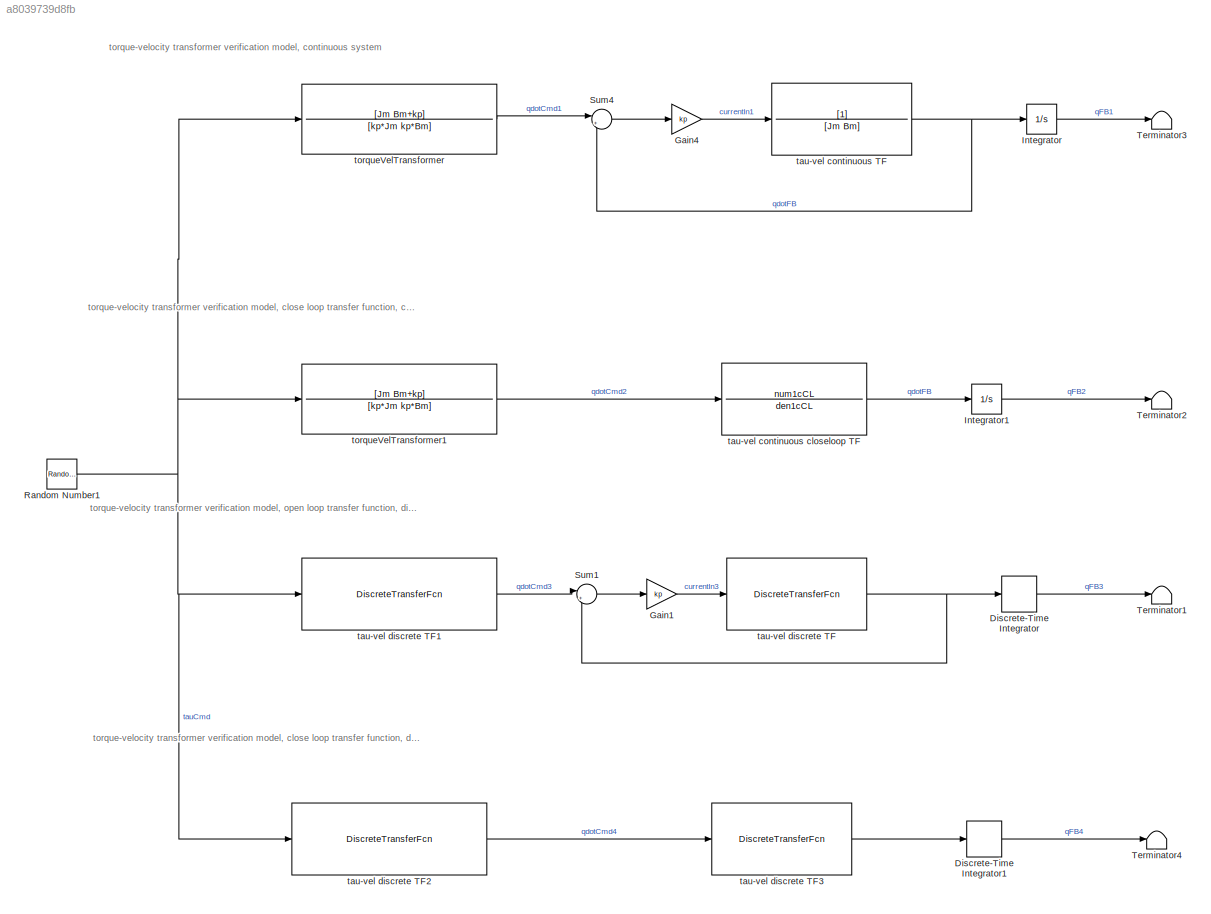
MODEL slx_a8039739d8fb
KIND model
CONFIG AbsTol = auto
CONFIG EnableMultiTasking = off
CONFIG FixedStep = dt5k
CONFIG InitFcn = velInit1;
CONFIG MaxStep = auto
CONFIG MinStep = auto
CONFIG RelTol = 1e-3
CONFIG SampleTimeConstraint = Unconstrained
CONFIG SolverName = ode5
CONFIG StartTime = 0.0
CONFIG StopTime = runT
BLOCK [DiscreteIntegrator] Discrete-Time Integrator
  ICPrevOutput = DiscIntNeverNeededParam
  ICPrevScaledInput = DiscIntNeverNeededParam
  InitialCondition = q0
  InitialConditionSetting = Auto
  Ports = [1, 1]
  SampleTime = dt5k
BLOCK [DiscreteIntegrator] Discrete-Time Integrator1
  ICPrevOutput = DiscIntNeverNeededParam
  ICPrevScaledInput = DiscIntNeverNeededParam
  InitialCondition = q0
  InitialConditionSetting = Auto
  Ports = [1, 1]
  SampleTime = dt5k
BLOCK [Gain] Gain1
  Gain = kp
BLOCK [Gain] Gain4
  Gain = kp
BLOCK [Integrator] Integrator
  Ports = [1, 1]
BLOCK [Integrator] Integrator1
  InitialCondition = q0
  Ports = [1, 1]
BLOCK [RandomNumber] Random Number1
  SampleTime = 0.2
  Seed = seedIndex
  Variance = 10
BLOCK [Sum] Sum1
  Inputs = |+-
  Ports = [2, 1]
BLOCK [Sum] Sum4
  Inputs = |+-
  Ports = [2, 1]
BLOCK [Terminator] Terminator1
BLOCK [Terminator] Terminator2
BLOCK [Terminator] Terminator3
BLOCK [Terminator] Terminator4
BLOCK [TransferFcn] tau-vel continuous TF
  Denominator = [Jm Bm]
BLOCK [TransferFcn] tau-vel continuous closeloop TF
  Denominator = den1cCL
  Numerator = num1cCL
BLOCK [DiscreteTransferFcn] tau-vel discrete TF
  Denominator = den1d
  InputPortMap = u0
  Numerator = num1d
  Ports = [1, 1]
  SampleTime = dt5k
BLOCK [DiscreteTransferFcn] tau-vel discrete TF1
  Denominator = denEd
  InputPortMap = u0
  Numerator = numEd
  Ports = [1, 1]
  SampleTime = dt1k
BLOCK [DiscreteTransferFcn] tau-vel discrete TF2
  Denominator = denEd
  InputPortMap = u0
  Numerator = numEd
  Ports = [1, 1]
  SampleTime = dt1k
BLOCK [DiscreteTransferFcn] tau-vel discrete TF3
  Denominator = den2d
  InputPortMap = u0
  Numerator = num2d
  Ports = [1, 1]
  SampleTime = dt5k
BLOCK [TransferFcn] torqueVelTransformer
  Denominator = [kp*Jm kp*Bm]
  Numerator = [Jm Bm+kp]
BLOCK [TransferFcn] torqueVelTransformer1
  Denominator = [kp*Jm kp*Bm]
  Numerator = [Jm Bm+kp]
ANNOTATION (root): torque-velocity transformer verification model, close loop transfer function, continuous system
ANNOTATION (root): torque-velocity transformer verification model, close loop transfer function, discrete system
ANNOTATION (root): torque-velocity transformer verification model, continuous system
ANNOTATION (root): torque-velocity transformer verification model, open loop transfer function, discrete system
LINE Discrete-Time Integrator1:1 -> Terminator4:1
LINE Discrete-Time Integrator:1 -> Terminator1:1
LINE Gain1:1 -> tau-vel discrete TF:1
LINE Gain4:1 -> tau-vel continuous TF:1
LINE Integrator1:1 -> Terminator2:1
LINE Integrator:1 -> Terminator3:1
NET Random Number1:1 -> tau-vel discrete TF1:1, tau-vel discrete TF2:1, torqueVelTransformer1:1, torqueVelTransformer:1
LINE Sum1:1 -> Gain1:1
LINE Sum4:1 -> Gain4:1
NET tau-vel continuous TF:1 -> Integrator:1, Sum4:2
LINE tau-vel continuous closeloop TF:1 -> Integrator1:1
LINE tau-vel discrete TF1:1 -> Sum1:1
LINE tau-vel discrete TF2:1 -> tau-vel discrete TF3:1
LINE tau-vel discrete TF3:1 -> Discrete-Time Integrator1:1
NET tau-vel discrete TF:1 -> Discrete-Time Integrator:1, Sum1:2
LINE torqueVelTransformer1:1 -> tau-vel continuous closeloop TF:1
LINE torqueVelTransformer:1 -> Sum4:1
note: NET lines group one-source signal fan-out (src -> all destinations, sorted); 1:1 wires keep LINE
